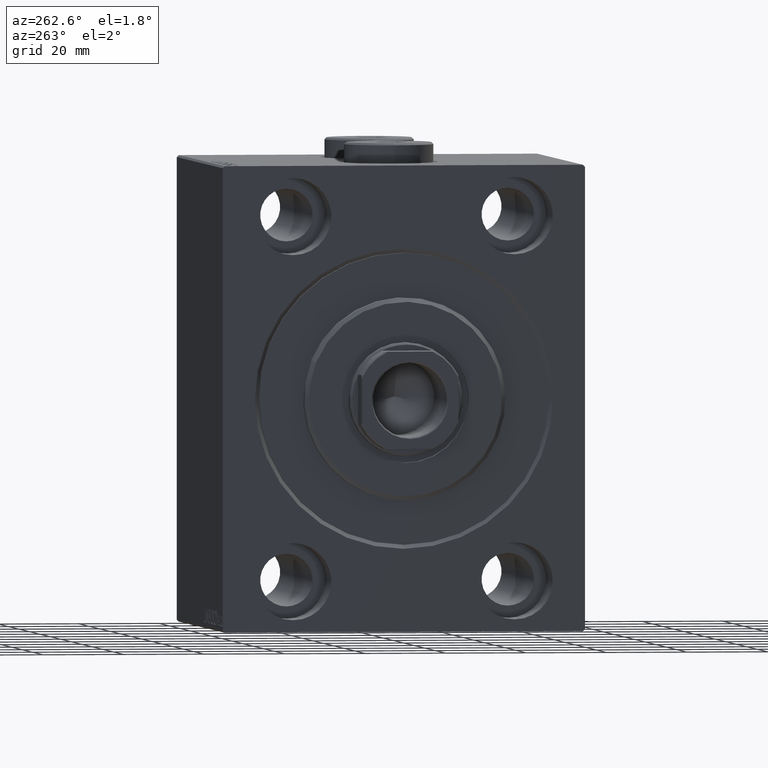
[diagram: clean part render]
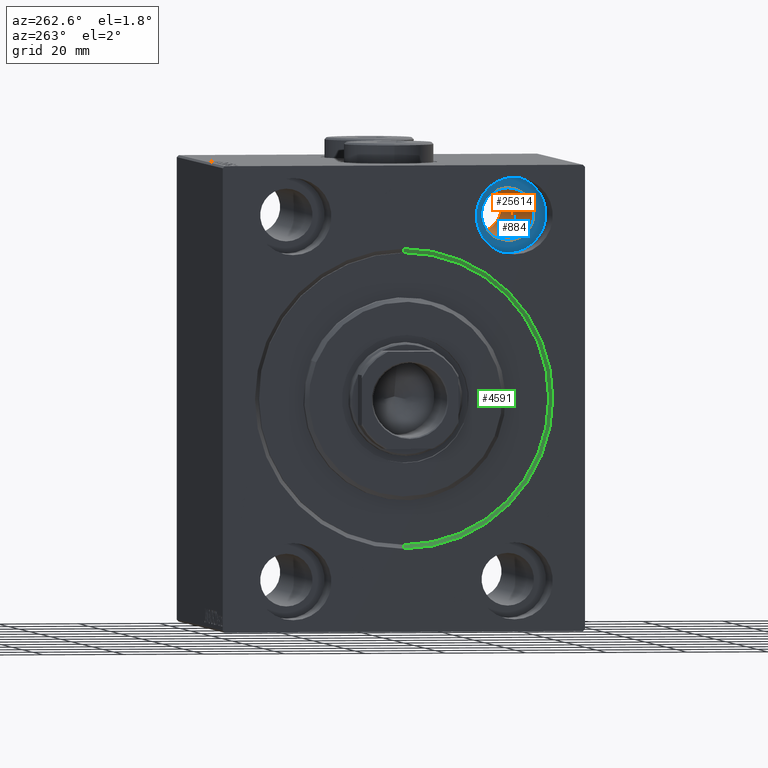
[diagram: same view with three faces highlighted in distinct colors, each labeled with its STEP entity id]
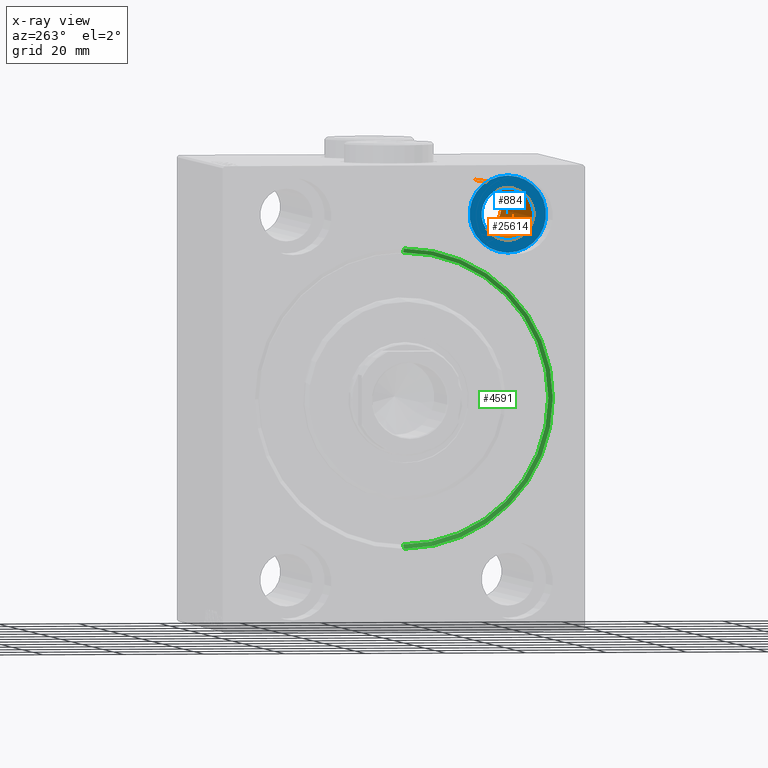
[diagram: x-ray of the same camera — body ghosted, the three highlighted faces saturated]
A machine part, auxiliary view with three faces highlighted in distinct colors.
The next image is the same camera in x-ray (body ghosted, the three faces saturated) — at least one of them is partly hidden behind the body in this view.
Their STEP definitions:

[orange] entity #25614 — the highlighted cylindrical surface (edge-blend (fillet) strip) has radius 6.5 mm, axis along (-1, -0, -0).
#269 = AXIS2_PLACEMENT_3D ( 'NONE', #9212, #23124, #37046 ) ;
#1651 = VERTEX_POINT ( 'NONE', #31771 ) ;
#4452 = CARTESIAN_POINT ( 'NONE',  ( 88.00000000000000000, -27.49999999999998934, 51.50000000000000711 ) ) ;
#5830 = ORIENTED_EDGE ( 'NONE', *, *, #10417, .T. ) ;
#7360 = DIRECTION ( 'NONE',  ( -1.000000000000000000, -0.000000000000000000, -0.000000000000000000 ) ) ;
#8374 = ORIENTED_EDGE ( 'NONE', *, *, #23756, .T. ) ;
#9212 = CARTESIAN_POINT ( 'NONE',  ( 75.00000000000000000, -27.49999999999998934, 45.00000000000000711 ) ) ;
#10168 = DIRECTION ( 'NONE',  ( -1.000000000000000000, -0.000000000000000000, -0.000000000000000000 ) ) ;
#10417 = EDGE_CURVE ( 'NONE', #38242, #45092, #18553, .T. ) ;
#10624 = LINE ( 'NONE', #4452, #26503 ) ;
#11304 = DIRECTION ( 'NONE',  ( -1.000000000000000000, -0.000000000000000000, -0.000000000000000000 ) ) ;
#14972 = DIRECTION ( 'NONE',  ( -1.000000000000000000, 0.000000000000000000, 0.000000000000000000 ) ) ;
#18553 = LINE ( 'NONE', #25378, #36548 ) ;
#18847 = DIRECTION ( 'NONE',  ( 0.000000000000000000, 0.000000000000000000, 1.000000000000000000 ) ) ;
#19621 = ORIENTED_EDGE ( 'NONE', *, *, #39097, .F. ) ;
#19640 = CIRCLE ( 'NONE', #45134, 6.499999999999999112 ) ;
#23124 = DIRECTION ( 'NONE',  ( -1.000000000000000000, -0.000000000000000000, -0.000000000000000000 ) ) ;
#23756 = EDGE_CURVE ( 'NONE', #45092, #24370, #19640, .T. ) ;
#23760 = CARTESIAN_POINT ( 'NONE',  ( 12.99999999999999822, -27.49999999999998934, 38.50000000000000711 ) ) ;
#24370 = VERTEX_POINT ( 'NONE', #42769 ) ;
#25378 = CARTESIAN_POINT ( 'NONE',  ( 88.00000000000000000, -27.49999999999998934, 38.50000000000000711 ) ) ;
#25614 = ADVANCED_FACE ( 'NONE', ( #34365 ), #37563, .F. ) ;
#26503 = VECTOR ( 'NONE', #11304, 1000.000000000000000 ) ;
#26838 = DIRECTION ( 'NONE',  ( 0.000000000000000000, 0.000000000000000000, 1.000000000000000000 ) ) ;
#27242 = CIRCLE ( 'NONE', #269, 6.499999999999999112 ) ;
#30723 = CARTESIAN_POINT ( 'NONE',  ( 88.00000000000000000, -27.49999999999998934, 45.00000000000000711 ) ) ;
#31771 = CARTESIAN_POINT ( 'NONE',  ( 75.00000000000000000, -27.49999999999998934, 51.50000000000000711 ) ) ;
#32297 = EDGE_LOOP ( 'NONE', ( #38051, #5830, #8374, #19621 ) ) ;
#34365 = FACE_OUTER_BOUND ( 'NONE', #32297, .T. ) ;
#35269 = CARTESIAN_POINT ( 'NONE',  ( 12.99999999999999822, -27.49999999999998934, 45.00000000000000711 ) ) ;
#36330 = CARTESIAN_POINT ( 'NONE',  ( 75.00000000000000000, -27.49999999999998934, 38.50000000000000711 ) ) ;
#36548 = VECTOR ( 'NONE', #7360, 1000.000000000000000 ) ;
#37046 = DIRECTION ( 'NONE',  ( 0.000000000000000000, 0.000000000000000000, -1.000000000000000000 ) ) ;
#37563 = CYLINDRICAL_SURFACE ( 'NONE', #40853, 6.499999999999999112 ) ;
#38051 = ORIENTED_EDGE ( 'NONE', *, *, #42964, .F. ) ;
#38242 = VERTEX_POINT ( 'NONE', #36330 ) ;
#39097 = EDGE_CURVE ( 'NONE', #1651, #24370, #10624, .T. ) ;
#40853 = AXIS2_PLACEMENT_3D ( 'NONE', #30723, #10168, #26838 ) ;
#42769 = CARTESIAN_POINT ( 'NONE',  ( 12.99999999999999822, -27.49999999999998934, 51.50000000000000711 ) ) ;
#42964 = EDGE_CURVE ( 'NONE', #38242, #1651, #27242, .T. ) ;
#45092 = VERTEX_POINT ( 'NONE', #23760 ) ;
#45134 = AXIS2_PLACEMENT_3D ( 'NONE', #35269, #14972, #18847 ) ;

[blue] entity #884 — the highlighted planar face has unit normal (-1, 0, 0).
#670 = EDGE_CURVE ( 'NONE', #18868, #42526, #13805, .T. ) ;
#884 = ADVANCED_FACE ( 'NONE', ( #8216, #25544 ), #8439, .T. ) ;
#1587 = DIRECTION ( 'NONE',  ( 0.000000000000000000, 0.000000000000000000, 1.000000000000000000 ) ) ;
#1695 = CARTESIAN_POINT ( 'NONE',  ( 13.00000000000000000, -27.49999999999998934, 45.00000000000000711 ) ) ;
#4821 = CARTESIAN_POINT ( 'NONE',  ( 13.00000000000000000, -27.49999999999998934, 54.50000000000000711 ) ) ;
#5189 = CARTESIAN_POINT ( 'NONE',  ( 13.00000000000000000, -27.49999999999998934, 35.50000000000000711 ) ) ;
#5806 = AXIS2_PLACEMENT_3D ( 'NONE', #1695, #33180, #22914 ) ;
#7309 = CIRCLE ( 'NONE', #13857, 6.499999999999999112 ) ;
#8216 = FACE_BOUND ( 'NONE', #24765, .T. ) ;
#8343 = CARTESIAN_POINT ( 'NONE',  ( 12.99999999999999822, -27.49999999999998934, 45.00000000000000711 ) ) ;
#8439 = PLANE ( 'NONE',  #32743 ) ;
#13336 = ORIENTED_EDGE ( 'NONE', *, *, #15213, .T. ) ;
#13805 = CIRCLE ( 'NONE', #5806, 9.500000000000001776 ) ;
#13857 = AXIS2_PLACEMENT_3D ( 'NONE', #8343, #36627, #16083 ) ;
#14972 = DIRECTION ( 'NONE',  ( -1.000000000000000000, 0.000000000000000000, 0.000000000000000000 ) ) ;
#15213 = EDGE_CURVE ( 'NONE', #42526, #18868, #34746, .T. ) ;
#16083 = DIRECTION ( 'NONE',  ( 0.000000000000000000, 0.000000000000000000, 1.000000000000000000 ) ) ;
#18718 = ORIENTED_EDGE ( 'NONE', *, *, #29005, .F. ) ;
#18847 = DIRECTION ( 'NONE',  ( 0.000000000000000000, 0.000000000000000000, 1.000000000000000000 ) ) ;
#18868 = VERTEX_POINT ( 'NONE', #4821 ) ;
#19640 = CIRCLE ( 'NONE', #45134, 6.499999999999999112 ) ;
#21735 = DIRECTION ( 'NONE',  ( 0.000000000000000000, 0.000000000000000000, 1.000000000000000000 ) ) ;
#22348 = DIRECTION ( 'NONE',  ( -1.000000000000000000, 0.000000000000000000, 0.000000000000000000 ) ) ;
#22914 = DIRECTION ( 'NONE',  ( 0.000000000000000000, 0.000000000000000000, 1.000000000000000000 ) ) ;
#23756 = EDGE_CURVE ( 'NONE', #45092, #24370, #19640, .T. ) ;
#23760 = CARTESIAN_POINT ( 'NONE',  ( 12.99999999999999822, -27.49999999999998934, 38.50000000000000711 ) ) ;
#24370 = VERTEX_POINT ( 'NONE', #42769 ) ;
#24765 = EDGE_LOOP ( 'NONE', ( #18718, #26483 ) ) ;
#25544 = FACE_OUTER_BOUND ( 'NONE', #35733, .T. ) ;
#26483 = ORIENTED_EDGE ( 'NONE', *, *, #23756, .F. ) ;
#27452 = AXIS2_PLACEMENT_3D ( 'NONE', #42268, #38853, #21735 ) ;
#29005 = EDGE_CURVE ( 'NONE', #24370, #45092, #7309, .T. ) ;
#32743 = AXIS2_PLACEMENT_3D ( 'NONE', #39231, #22348, #1587 ) ;
#33180 = DIRECTION ( 'NONE',  ( -1.000000000000000000, 0.000000000000000000, 0.000000000000000000 ) ) ;
#34746 = CIRCLE ( 'NONE', #27452, 9.500000000000001776 ) ;
#35269 = CARTESIAN_POINT ( 'NONE',  ( 12.99999999999999822, -27.49999999999998934, 45.00000000000000711 ) ) ;
#35733 = EDGE_LOOP ( 'NONE', ( #44411, #13336 ) ) ;
#36627 = DIRECTION ( 'NONE',  ( -1.000000000000000000, 0.000000000000000000, 0.000000000000000000 ) ) ;
#38853 = DIRECTION ( 'NONE',  ( -1.000000000000000000, 0.000000000000000000, 0.000000000000000000 ) ) ;
#39231 = CARTESIAN_POINT ( 'NONE',  ( 13.00000000000000000, 0.000000000000000000, 0.000000000000000000 ) ) ;
#42268 = CARTESIAN_POINT ( 'NONE',  ( 13.00000000000000000, -27.49999999999998934, 45.00000000000000711 ) ) ;
#42526 = VERTEX_POINT ( 'NONE', #5189 ) ;
#42769 = CARTESIAN_POINT ( 'NONE',  ( 12.99999999999999822, -27.49999999999998934, 51.50000000000000711 ) ) ;
#44411 = ORIENTED_EDGE ( 'NONE', *, *, #670, .T. ) ;
#45092 = VERTEX_POINT ( 'NONE', #23760 ) ;
#45134 = AXIS2_PLACEMENT_3D ( 'NONE', #35269, #14972, #18847 ) ;

[green] entity #4591 — the highlighted conical surface has half-angle 45 deg.
#317 = CARTESIAN_POINT ( 'NONE',  ( 0.9999999999999800160, 0.000000000000000000, 36.00000000000000000 ) ) ;
#776 = CONICAL_SURFACE ( 'NONE', #22647, 36.00000000000000000, 0.7853981633974552734 ) ;
#1310 = EDGE_CURVE ( 'NONE', #16000, #2649, #10196, .T. ) ;
#1871 = ORIENTED_EDGE ( 'NONE', *, *, #8419, .F. ) ;
#2649 = VERTEX_POINT ( 'NONE', #6215 ) ;
#4201 = ORIENTED_EDGE ( 'NONE', *, *, #32477, .F. ) ;
#4591 = ADVANCED_FACE ( 'NONE', ( #34939 ), #776, .F. ) ;
#6215 = CARTESIAN_POINT ( 'NONE',  ( 0.000000000000000000, 4.531193156845205215E-15, -36.99999999999999289 ) ) ;
#7183 = DIRECTION ( 'NONE',  ( 1.000000000000000000, 0.000000000000000000, 0.000000000000000000 ) ) ;
#7349 = EDGE_CURVE ( 'NONE', #28244, #2649, #39625, .T. ) ;
#8419 = EDGE_CURVE ( 'NONE', #28244, #14727, #20552, .T. ) ;
#8909 = AXIS2_PLACEMENT_3D ( 'NONE', #26550, #37493, #26994 ) ;
#10196 = CIRCLE ( 'NONE', #30596, 36.99999999999999289 ) ;
#12689 = DIRECTION ( 'NONE',  ( -0.7071067811865426878, 8.659560562354993255E-17, -0.7071067811865524577 ) ) ;
#14727 = VERTEX_POINT ( 'NONE', #34370 ) ;
#16000 = VERTEX_POINT ( 'NONE', #41610 ) ;
#17605 = VECTOR ( 'NONE', #20850, 1000.000000000000000 ) ;
#18158 = ORIENTED_EDGE ( 'NONE', *, *, #1310, .F. ) ;
#20552 = CIRCLE ( 'NONE', #8909, 36.00000000000000000 ) ;
#20850 = DIRECTION ( 'NONE',  ( -0.7071067811865426878, 0.000000000000000000, 0.7071067811865524577 ) ) ;
#21692 = DIRECTION ( 'NONE',  ( 0.000000000000000000, 0.000000000000000000, 1.000000000000000000 ) ) ;
#22647 = AXIS2_PLACEMENT_3D ( 'NONE', #32199, #31519, #21692 ) ;
#25937 = EDGE_LOOP ( 'NONE', ( #1871, #38135, #18158, #4201 ) ) ;
#26550 = CARTESIAN_POINT ( 'NONE',  ( 0.9999999999999800160, 0.000000000000000000, 0.000000000000000000 ) ) ;
#26994 = DIRECTION ( 'NONE',  ( 0.000000000000000000, 0.000000000000000000, -1.000000000000000000 ) ) ;
#27734 = DIRECTION ( 'NONE',  ( 0.000000000000000000, 0.000000000000000000, -1.000000000000000000 ) ) ;
#28244 = VERTEX_POINT ( 'NONE', #28585 ) ;
#28585 = CARTESIAN_POINT ( 'NONE',  ( 0.9999999999999800160, 4.408728476930470856E-15, -36.00000000000000000 ) ) ;
#30596 = AXIS2_PLACEMENT_3D ( 'NONE', #38441, #7183, #27734 ) ;
#31519 = DIRECTION ( 'NONE',  ( -1.000000000000000000, 0.000000000000000000, 0.000000000000000000 ) ) ;
#32199 = CARTESIAN_POINT ( 'NONE',  ( 0.9999999999999800160, 0.000000000000000000, 0.000000000000000000 ) ) ;
#32477 = EDGE_CURVE ( 'NONE', #14727, #16000, #38199, .T. ) ;
#34370 = CARTESIAN_POINT ( 'NONE',  ( 0.9999999999999800160, 0.000000000000000000, 36.00000000000000000 ) ) ;
#34939 = FACE_OUTER_BOUND ( 'NONE', #25937, .T. ) ;
#37493 = DIRECTION ( 'NONE',  ( -1.000000000000000000, 0.000000000000000000, 0.000000000000000000 ) ) ;
#38135 = ORIENTED_EDGE ( 'NONE', *, *, #7349, .T. ) ;
#38199 = LINE ( 'NONE', #317, #17605 ) ;
#38441 = CARTESIAN_POINT ( 'NONE',  ( 0.000000000000000000, 0.000000000000000000, 0.000000000000000000 ) ) ;
#39625 = LINE ( 'NONE', #43943, #40246 ) ;
#40246 = VECTOR ( 'NONE', #12689, 1000.000000000000000 ) ;
#41610 = CARTESIAN_POINT ( 'NONE',  ( 0.000000000000000000, 0.000000000000000000, 36.99999999999999289 ) ) ;
#43943 = CARTESIAN_POINT ( 'NONE',  ( 0.9999999999999800160, 4.408728476930470856E-15, -36.00000000000000000 ) ) ;